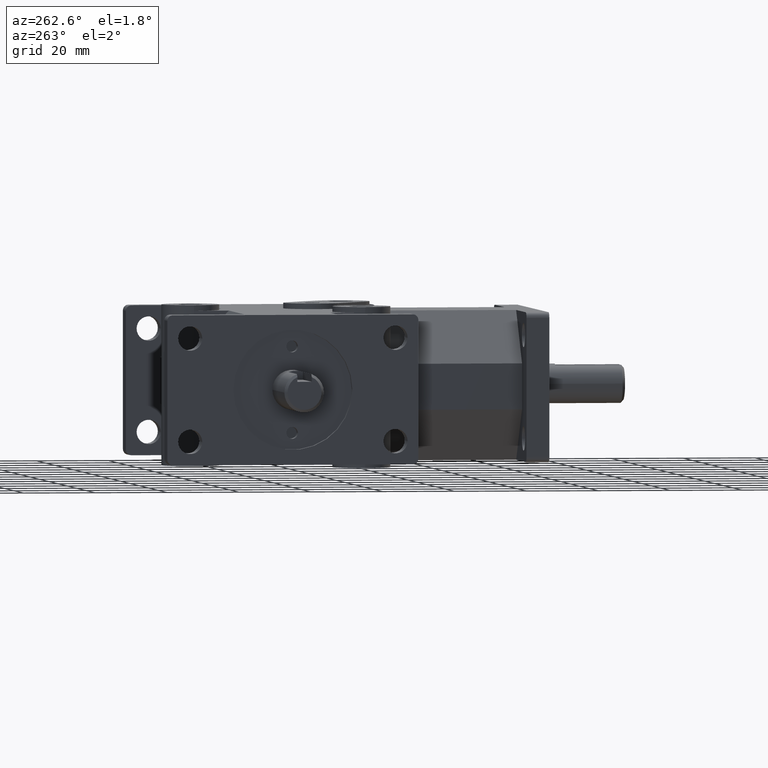
[diagram: clean part render]
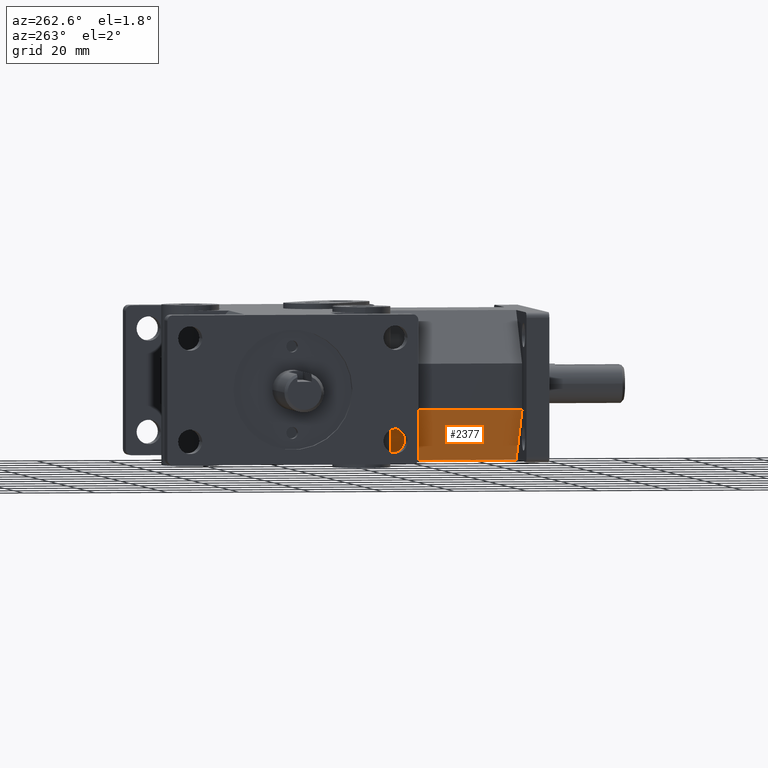
[diagram: same view with one face highlighted and labeled with its STEP entity id]
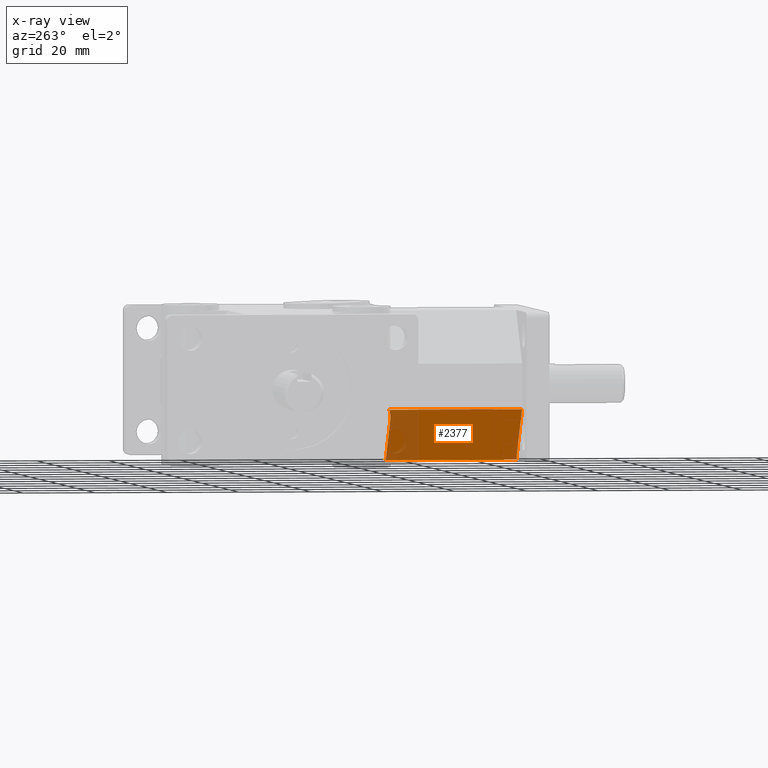
[diagram: x-ray of the same camera — body ghosted, the highlighted face saturated]
A machine part, auxiliary view. The second image highlights one B-rep face of the part: STEP entity #2377.
The next image is the same camera in x-ray: the body ghosted, the highlighted face saturated — about 17% of this face is hidden behind the body in this view.
In plain terms, the highlighted planar face has unit normal (0.7489, 0, 0.6627).
Its self-contained STEP definition (entity closure, byte-faithful):
#219=FACE_OUTER_BOUND('',#354,.T.);
#354=EDGE_LOOP('',(#1586,#1587,#1588,#1589,#1590));
#533=ELLIPSE('',#2527,12.0730291425516,8.001);
#545=LINE('',#3519,#773);
#546=LINE('',#3521,#774);
#547=LINE('',#3523,#775);
#548=LINE('',#3525,#776);
#773=VECTOR('',#2783,1.);
#774=VECTOR('',#2784,1.);
#775=VECTOR('',#2785,1.);
#776=VECTOR('',#2786,1.);
#1001=VERTEX_POINT('',#3517);
#1002=VERTEX_POINT('',#3518);
#1003=VERTEX_POINT('',#3520);
#1004=VERTEX_POINT('',#3522);
#1005=VERTEX_POINT('',#3524);
#1234=EDGE_CURVE('',#1001,#1002,#545,.T.);
#1235=EDGE_CURVE('',#1003,#1001,#546,.T.);
#1236=EDGE_CURVE('',#1003,#1004,#547,.T.);
#1237=EDGE_CURVE('',#1005,#1004,#548,.T.);
#1238=EDGE_CURVE('',#1002,#1005,#533,.T.);
#1586=ORIENTED_EDGE('',*,*,#1234,.F.);
#1587=ORIENTED_EDGE('',*,*,#1235,.F.);
#1588=ORIENTED_EDGE('',*,*,#1236,.T.);
#1589=ORIENTED_EDGE('',*,*,#1237,.F.);
#1590=ORIENTED_EDGE('',*,*,#1238,.F.);
#2290=PLANE('',#2526);
#2377=ADVANCED_FACE('',(#219),#2290,.F.);
#2526=AXIS2_PLACEMENT_3D('',#3516,#2781,#2782);
#2527=AXIS2_PLACEMENT_3D('',#3526,#2787,#2788);
#2781=DIRECTION('center_axis',(0.748870055165724,0.,0.662716862978517));
#2782=DIRECTION('ref_axis',(0.,-1.,0.));
#2783=DIRECTION('',(-0.662716862978517,0.,0.748870055165724));
#2784=DIRECTION('',(0.,1.,0.));
#2785=DIRECTION('',(-0.662716862978517,0.,0.748870055165724));
#2786=DIRECTION('',(0.,-1.,0.));
#2787=DIRECTION('center_axis',(-0.748870055165724,0.,-0.662716862978517));
#2788=DIRECTION('ref_axis',(0.662716862978517,0.,-0.748870055165724));
#3516=CARTESIAN_POINT('Origin',(-12.7,6.35,-20.701));
#3517=CARTESIAN_POINT('',(-12.7,42.672,-20.701));
#3518=CARTESIAN_POINT('',(-22.352,42.672,-9.79424));
#3519=CARTESIAN_POINT('',(-4.62452018094779,42.672,-29.826292195529));
#3520=CARTESIAN_POINT('',(-12.7,6.35,-20.701));
#3521=CARTESIAN_POINT('',(-12.7,29.9901887651822,-20.701));
#3522=CARTESIAN_POINT('',(-25.4,6.35,-6.35));
#3523=CARTESIAN_POINT('',(-12.7,6.35,-20.701));
#3524=CARTESIAN_POINT('',(-25.4,43.275318133361,-6.35));
#3525=CARTESIAN_POINT('',(-25.4,27.051,-6.35));
#3526=CARTESIAN_POINT('Origin',(-22.352,50.673,-9.79424));